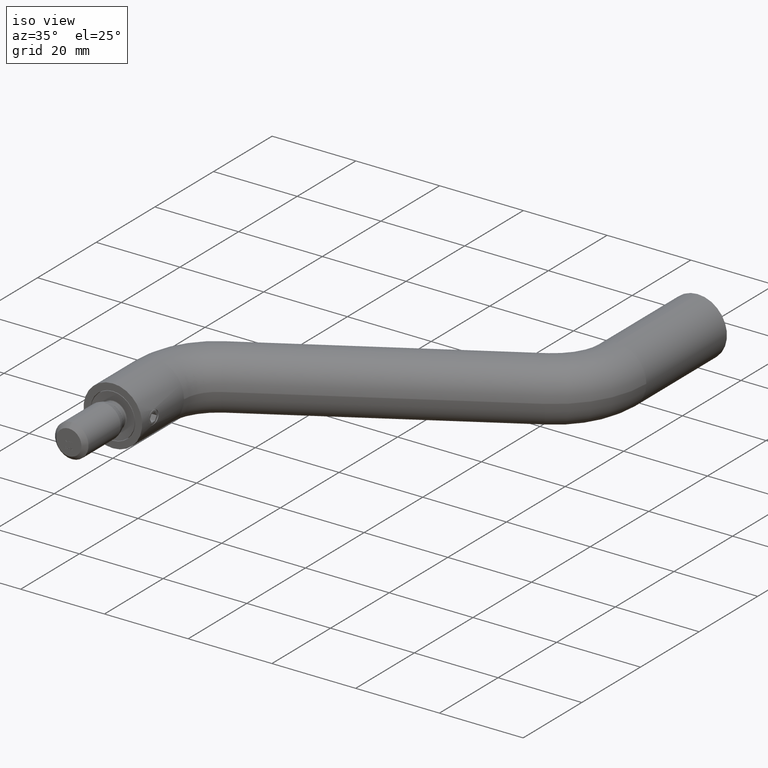
[diagram: clean part render]
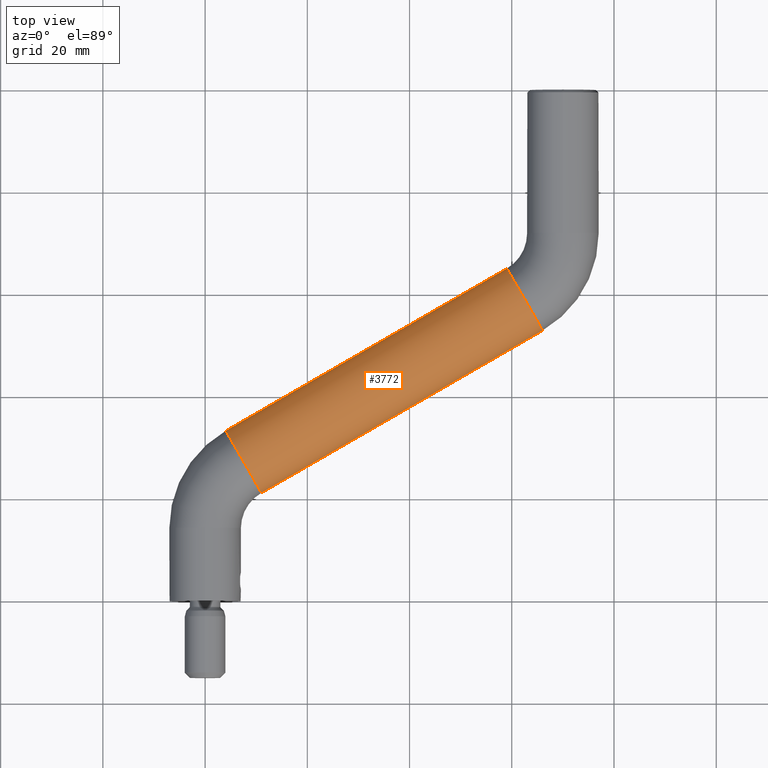
[diagram: tour spotlight — one face highlighted and labeled with its STEP entity id]
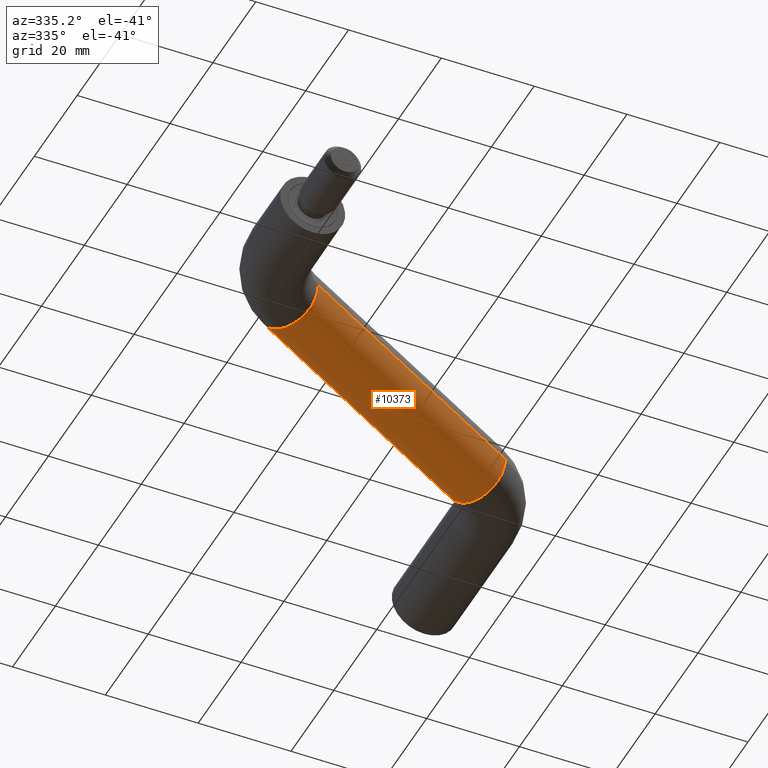
[diagram: tour spotlight — one face highlighted and labeled with its STEP entity id]
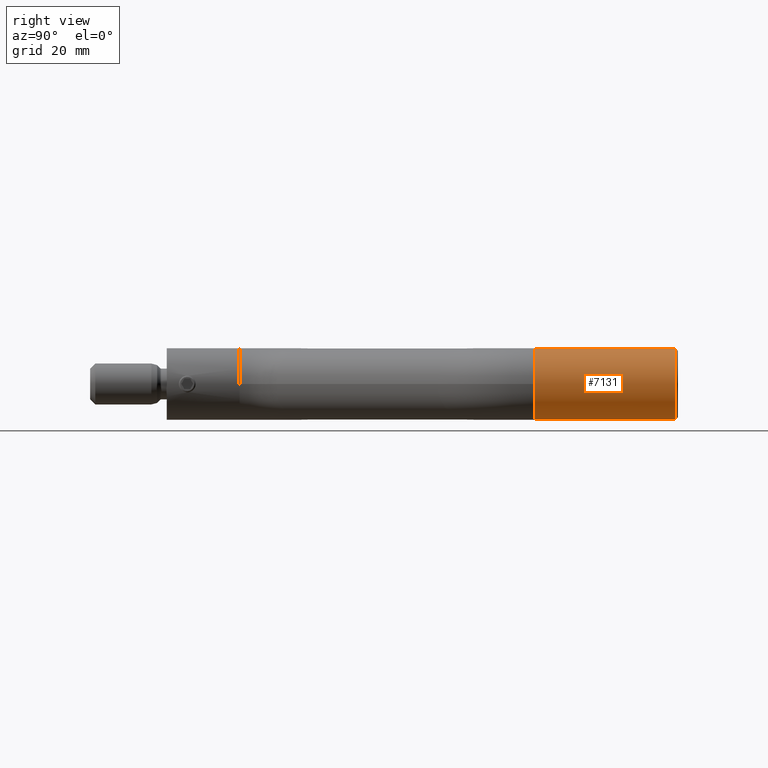
[diagram: tour spotlight — one face highlighted and labeled with its STEP entity id]
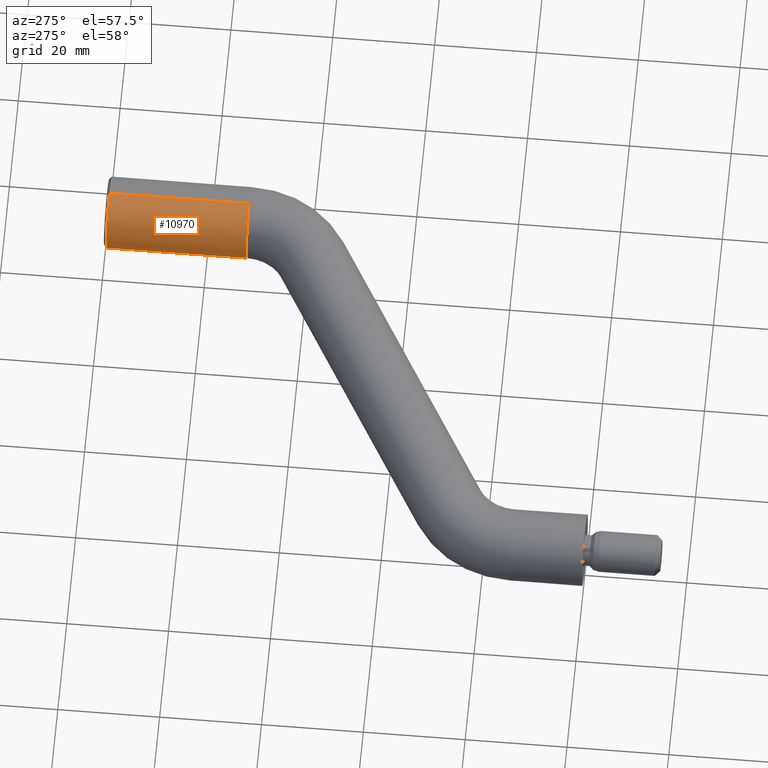
[diagram: tour spotlight — one face highlighted and labeled with its STEP entity id]
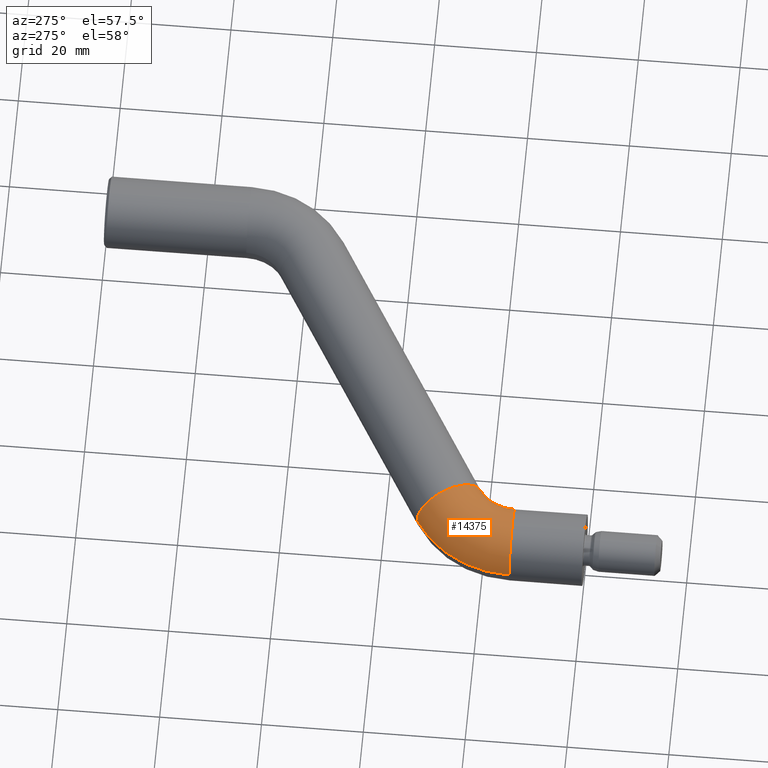
[diagram: tour spotlight — one face highlighted and labeled with its STEP entity id]
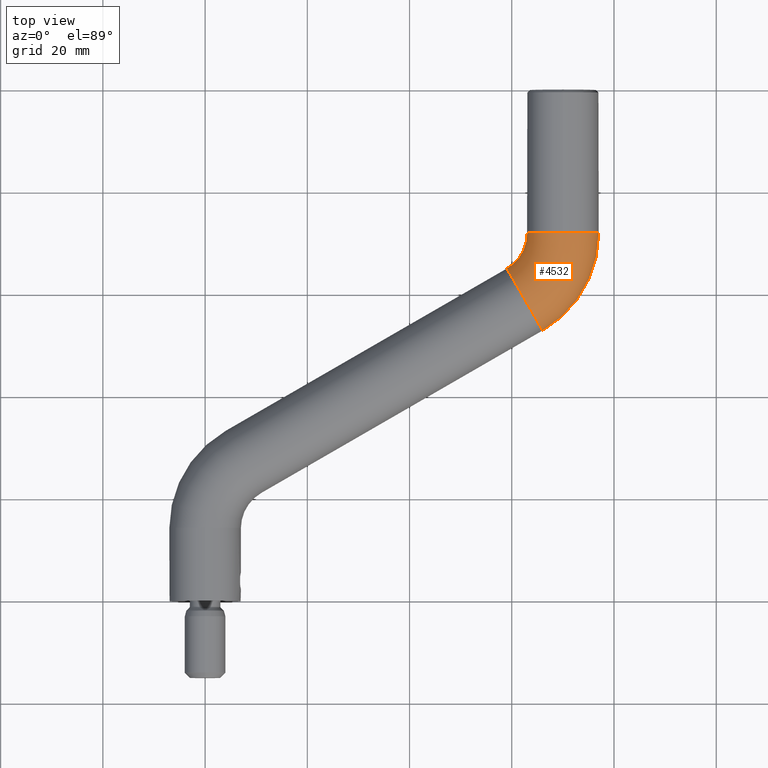
[diagram: tour spotlight — one face highlighted and labeled with its STEP entity id]
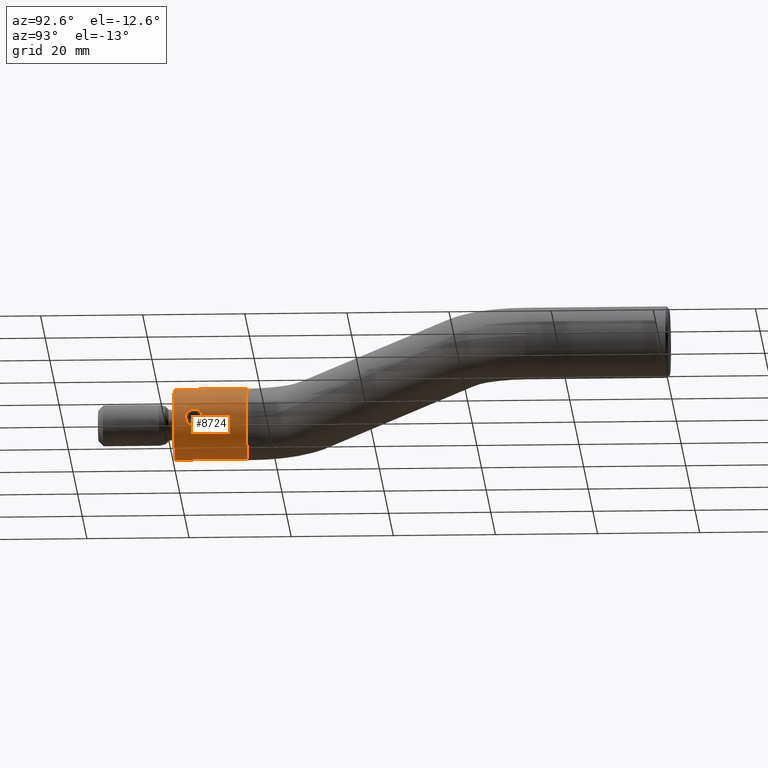
[diagram: tour spotlight — one face highlighted and labeled with its STEP entity id]
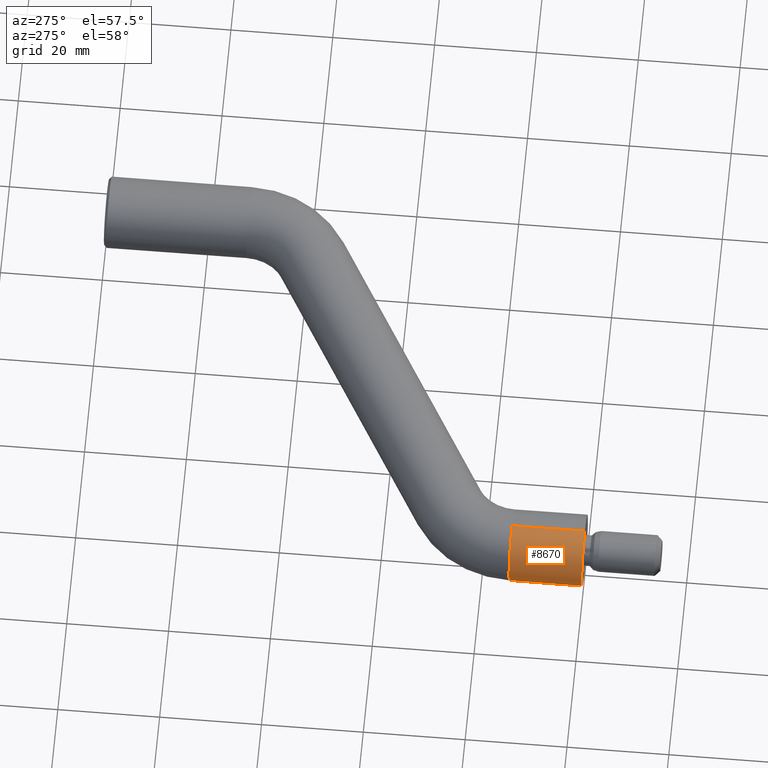
[diagram: tour spotlight — one face highlighted and labeled with its STEP entity id]
A machine part: a face-by-face anatomy tour. The part has 304 B-rep faces; the first image is the clean iso view, then the 8 largest visible faces are spotlighted one at a time (largest first), each with its STEP entity span.

Face 1 — top view, entity #3772. In plain terms, the highlighted cylindrical surface (edge-blend (fillet) strip) has radius 7 mm, axis along (0.866, 0.5, 0).
Definition (entity closure, byte-faithful):
#62 = DIRECTION ( 'NONE',  ( 0.0000000000000000000, 0.0000000000000000000, 1.000000000000000000 ) ) ;
#990 = DIRECTION ( 'NONE',  ( 0.8660254037844398200, 0.4999999999999980000, 0.0000000000000000000 ) ) ;
#1024 = CARTESIAN_POINT ( 'NONE',  ( 11.00000000000001600, 21.19317631131311700, 8.572527594031473200E-016 ) ) ;
#1102 = VERTEX_POINT ( 'NONE', #2758 ) ;
#1156 = EDGE_CURVE ( 'NONE', #1102, #2253, #4850, .T. ) ;
#1329 = CARTESIAN_POINT ( 'NONE',  ( 4.000000000000043500, 33.31753196429527000, 0.0000000000000000000 ) ) ;
#1507 = LINE ( 'NONE', #1329, #3286 ) ;
#1594 = EDGE_CURVE ( 'NONE', #10351, #7417, #11634, .T. ) ;
#2253 = VERTEX_POINT ( 'NONE', #9450 ) ;
#2515 = ORIENTED_EDGE ( 'NONE', *, *, #1594, .F. ) ;
#2758 = CARTESIAN_POINT ( 'NONE',  ( 4.000000000000043500, 33.31753196429527000, 0.0000000000000000000 ) ) ;
#3063 = DIRECTION ( 'NONE',  ( 0.8660254037844398200, 0.4999999999999980600, 0.0000000000000000000 ) ) ;
#3286 = VECTOR ( 'NONE', #11489, 1000.000000000000100 ) ;
#3407 = ORIENTED_EDGE ( 'NONE', *, *, #14409, .F. ) ;
#3772 = ADVANCED_FACE ( 'NONE', ( #11968 ), #6569, .T. ) ;
#4850 = CIRCLE ( 'NONE', #5053, 7.000000000000000000 ) ;
#5053 = AXIS2_PLACEMENT_3D ( 'NONE', #6395, #6240, #11886 ) ;
#5381 = DIRECTION ( 'NONE',  ( -0.4999999999999980600, 0.8660254037844398200, 0.0000000000000000000 ) ) ;
#5427 = CARTESIAN_POINT ( 'NONE',  ( 7.500000000000030200, 27.25535413780419300, 0.0000000000000000000 ) ) ;
#5863 = ORIENTED_EDGE ( 'NONE', *, *, #1156, .T. ) ;
#6174 = AXIS2_PLACEMENT_3D ( 'NONE', #5427, #3063, #5381 ) ;
#6240 = DIRECTION ( 'NONE',  ( 0.8660254037844398200, 0.4999999999999980000, 0.0000000000000000000 ) ) ;
#6395 = CARTESIAN_POINT ( 'NONE',  ( 7.500000000000030200, 27.25535413780419300, 0.0000000000000000000 ) ) ;
#6569 = CYLINDRICAL_SURFACE ( 'NONE', #6174, 7.000000000000000900 ) ;
#6630 = ORIENTED_EDGE ( 'NONE', *, *, #9013, .T. ) ;
#7417 = VERTEX_POINT ( 'NONE', #7949 ) ;
#7653 = DIRECTION ( 'NONE',  ( 0.8660254037844397100, 0.4999999999999980000, 0.0000000000000000000 ) ) ;
#7949 = CARTESIAN_POINT ( 'NONE',  ( 65.99999999999994300, 52.94744111674232600, 8.572527594031473200E-016 ) ) ;
#8286 = EDGE_LOOP ( 'NONE', ( #5863, #6630, #2515, #3407 ) ) ;
#8568 = CARTESIAN_POINT ( 'NONE',  ( 58.99999999999998600, 65.07179676972450000, 0.0000000000000000000 ) ) ;
#9013 = EDGE_CURVE ( 'NONE', #2253, #7417, #13606, .T. ) ;
#9450 = CARTESIAN_POINT ( 'NONE',  ( 11.00000000000001600, 21.19317631131311700, 8.572527594031473200E-016 ) ) ;
#10351 = VERTEX_POINT ( 'NONE', #8568 ) ;
#11185 = CARTESIAN_POINT ( 'NONE',  ( 62.49999999999996400, 59.00961894323340600, 0.0000000000000000000 ) ) ;
#11489 = DIRECTION ( 'NONE',  ( 0.8660254037844397100, 0.4999999999999980000, 0.0000000000000000000 ) ) ;
#11634 = CIRCLE ( 'NONE', #14067, 7.000000000000000000 ) ;
#11886 = DIRECTION ( 'NONE',  ( 0.0000000000000000000, 0.0000000000000000000, 1.000000000000000000 ) ) ;
#11968 = FACE_OUTER_BOUND ( 'NONE', #8286, .T. ) ;
#13606 = LINE ( 'NONE', #1024, #14312 ) ;
#14067 = AXIS2_PLACEMENT_3D ( 'NONE', #11185, #990, #62 ) ;
#14312 = VECTOR ( 'NONE', #7653, 1000.000000000000100 ) ;
#14409 = EDGE_CURVE ( 'NONE', #1102, #10351, #1507, .T. ) ;

Face 2 — auxiliary view, entity #10373. In plain terms, the highlighted cylindrical surface (edge-blend (fillet) strip) has radius 7 mm, axis along (0.866, 0.5, 0).
Definition (entity closure, byte-faithful):
#17 = AXIS2_PLACEMENT_3D ( 'NONE', #10841, #7549, #732 ) ;
#732 = DIRECTION ( 'NONE',  ( -0.4999999999999980600, 0.8660254037844398200, 0.0000000000000000000 ) ) ;
#1024 = CARTESIAN_POINT ( 'NONE',  ( 11.00000000000001600, 21.19317631131311700, 8.572527594031473200E-016 ) ) ;
#1102 = VERTEX_POINT ( 'NONE', #2758 ) ;
#1329 = CARTESIAN_POINT ( 'NONE',  ( 4.000000000000043500, 33.31753196429527000, 0.0000000000000000000 ) ) ;
#1484 = EDGE_CURVE ( 'NONE', #2253, #1102, #2572, .T. ) ;
#1507 = LINE ( 'NONE', #1329, #3286 ) ;
#2253 = VERTEX_POINT ( 'NONE', #9450 ) ;
#2295 = DIRECTION ( 'NONE',  ( 0.0000000000000000000, 0.0000000000000000000, 1.000000000000000000 ) ) ;
#2572 = CIRCLE ( 'NONE', #2781, 7.000000000000000000 ) ;
#2744 = CARTESIAN_POINT ( 'NONE',  ( 7.500000000000030200, 27.25535413780419300, 0.0000000000000000000 ) ) ;
#2758 = CARTESIAN_POINT ( 'NONE',  ( 4.000000000000043500, 33.31753196429527000, 0.0000000000000000000 ) ) ;
#2781 = AXIS2_PLACEMENT_3D ( 'NONE', #2744, #6274, #7250 ) ;
#3286 = VECTOR ( 'NONE', #11489, 1000.000000000000100 ) ;
#3330 = CARTESIAN_POINT ( 'NONE',  ( 62.49999999999996400, 59.00961894323340600, 0.0000000000000000000 ) ) ;
#4025 = CYLINDRICAL_SURFACE ( 'NONE', #17, 7.000000000000000900 ) ;
#4249 = AXIS2_PLACEMENT_3D ( 'NONE', #3330, #12243, #2295 ) ;
#4802 = EDGE_LOOP ( 'NONE', ( #11862, #12562, #7639, #6211 ) ) ;
#6211 = ORIENTED_EDGE ( 'NONE', *, *, #7711, .F. ) ;
#6274 = DIRECTION ( 'NONE',  ( 0.8660254037844398200, 0.4999999999999980000, 0.0000000000000000000 ) ) ;
#7250 = DIRECTION ( 'NONE',  ( 0.0000000000000000000, 0.0000000000000000000, 1.000000000000000000 ) ) ;
#7417 = VERTEX_POINT ( 'NONE', #7949 ) ;
#7549 = DIRECTION ( 'NONE',  ( 0.8660254037844398200, 0.4999999999999980600, 0.0000000000000000000 ) ) ;
#7639 = ORIENTED_EDGE ( 'NONE', *, *, #14409, .T. ) ;
#7653 = DIRECTION ( 'NONE',  ( 0.8660254037844397100, 0.4999999999999980000, 0.0000000000000000000 ) ) ;
#7711 = EDGE_CURVE ( 'NONE', #7417, #10351, #10937, .T. ) ;
#7949 = CARTESIAN_POINT ( 'NONE',  ( 65.99999999999994300, 52.94744111674232600, 8.572527594031473200E-016 ) ) ;
#8568 = CARTESIAN_POINT ( 'NONE',  ( 58.99999999999998600, 65.07179676972450000, 0.0000000000000000000 ) ) ;
#9013 = EDGE_CURVE ( 'NONE', #2253, #7417, #13606, .T. ) ;
#9450 = CARTESIAN_POINT ( 'NONE',  ( 11.00000000000001600, 21.19317631131311700, 8.572527594031473200E-016 ) ) ;
#10351 = VERTEX_POINT ( 'NONE', #8568 ) ;
#10373 = ADVANCED_FACE ( 'NONE', ( #12917 ), #4025, .T. ) ;
#10841 = CARTESIAN_POINT ( 'NONE',  ( 7.500000000000030200, 27.25535413780419300, 0.0000000000000000000 ) ) ;
#10937 = CIRCLE ( 'NONE', #4249, 7.000000000000000000 ) ;
#11489 = DIRECTION ( 'NONE',  ( 0.8660254037844397100, 0.4999999999999980000, 0.0000000000000000000 ) ) ;
#11862 = ORIENTED_EDGE ( 'NONE', *, *, #9013, .F. ) ;
#12243 = DIRECTION ( 'NONE',  ( 0.8660254037844398200, 0.4999999999999980000, 0.0000000000000000000 ) ) ;
#12562 = ORIENTED_EDGE ( 'NONE', *, *, #1484, .T. ) ;
#12917 = FACE_OUTER_BOUND ( 'NONE', #4802, .T. ) ;
#13606 = LINE ( 'NONE', #1024, #14312 ) ;
#14312 = VECTOR ( 'NONE', #7653, 1000.000000000000100 ) ;
#14409 = EDGE_CURVE ( 'NONE', #1102, #10351, #1507, .T. ) ;

Face 3 — right view, entity #7131. In plain terms, the highlighted cylindrical surface (edge-blend (fillet) strip) has radius 7 mm, axis along (0, 1, 0).
Definition (entity closure, byte-faithful):
#201 = AXIS2_PLACEMENT_3D ( 'NONE', #13605, #7055, #9111 ) ;
#467 = LINE ( 'NONE', #11356, #1882 ) ;
#895 = DIRECTION ( 'NONE',  ( 0.0000000000000000000, -1.000000000000000000, 0.0000000000000000000 ) ) ;
#950 = VERTEX_POINT ( 'NONE', #12485 ) ;
#1021 = CIRCLE ( 'NONE', #9194, 7.000000000000000000 ) ;
#1078 = FACE_OUTER_BOUND ( 'NONE', #8421, .T. ) ;
#1882 = VECTOR ( 'NONE', #10252, 1000.000000000000000 ) ;
#2066 = CARTESIAN_POINT ( 'NONE',  ( 70.00000000000000000, 72.00000000000001400, 0.0000000000000000000 ) ) ;
#2277 = CIRCLE ( 'NONE', #5269, 7.000000000000000000 ) ;
#2279 = ORIENTED_EDGE ( 'NONE', *, *, #11668, .T. ) ;
#2306 = CYLINDRICAL_SURFACE ( 'NONE', #3956, 7.000000000000000000 ) ;
#3014 = ORIENTED_EDGE ( 'NONE', *, *, #13944, .T. ) ;
#3956 = AXIS2_PLACEMENT_3D ( 'NONE', #11928, #7306, #6281 ) ;
#4419 = ORIENTED_EDGE ( 'NONE', *, *, #10490, .T. ) ;
#4899 = VERTEX_POINT ( 'NONE', #9580 ) ;
#5269 = AXIS2_PLACEMENT_3D ( 'NONE', #2066, #8722, #12205 ) ;
#5443 = VERTEX_POINT ( 'NONE', #6407 ) ;
#5542 = CARTESIAN_POINT ( 'NONE',  ( 70.00000000000000000, 99.50000000000004300, 7.000000000000000000 ) ) ;
#5597 = VERTEX_POINT ( 'NONE', #5542 ) ;
#5794 = CARTESIAN_POINT ( 'NONE',  ( 70.00000000000000000, 99.50000000000004300, 0.0000000000000000000 ) ) ;
#6281 = DIRECTION ( 'NONE',  ( 0.0000000000000000000, 0.0000000000000000000, 1.000000000000000000 ) ) ;
#6317 = ORIENTED_EDGE ( 'NONE', *, *, #8333, .T. ) ;
#6407 = CARTESIAN_POINT ( 'NONE',  ( 70.00000000000000000, 72.00000000000001400, 7.000000000000000000 ) ) ;
#6688 = ORIENTED_EDGE ( 'NONE', *, *, #13701, .F. ) ;
#6729 = DIRECTION ( 'NONE',  ( 0.0000000000000000000, 0.0000000000000000000, 1.000000000000000000 ) ) ;
#6789 = VECTOR ( 'NONE', #14143, 1000.000000000000000 ) ;
#7055 = DIRECTION ( 'NONE',  ( -7.216449660063517500E-016, 1.000000000000000000, 0.0000000000000000000 ) ) ;
#7081 = CIRCLE ( 'NONE', #201, 7.000000000000000000 ) ;
#7131 = ADVANCED_FACE ( 'NONE', ( #1078 ), #2306, .T. ) ;
#7133 = LINE ( 'NONE', #9691, #6789 ) ;
#7306 = DIRECTION ( 'NONE',  ( 0.0000000000000000000, 1.000000000000000000, 0.0000000000000000000 ) ) ;
#8333 = EDGE_CURVE ( 'NONE', #5443, #4899, #7081, .T. ) ;
#8421 = EDGE_LOOP ( 'NONE', ( #6317, #4419, #3014, #2279, #6688 ) ) ;
#8722 = DIRECTION ( 'NONE',  ( -7.216449660063517500E-016, 1.000000000000000000, 0.0000000000000000000 ) ) ;
#9111 = DIRECTION ( 'NONE',  ( 0.0000000000000000000, 0.0000000000000000000, 1.000000000000000000 ) ) ;
#9194 = AXIS2_PLACEMENT_3D ( 'NONE', #5794, #895, #6729 ) ;
#9580 = CARTESIAN_POINT ( 'NONE',  ( 77.00000000000001400, 72.00000000000001400, 0.0000000000000000000 ) ) ;
#9691 = CARTESIAN_POINT ( 'NONE',  ( 70.00000000000000000, 72.00000000000001400, 7.000000000000000000 ) ) ;
#10252 = DIRECTION ( 'NONE',  ( 0.0000000000000000000, 1.000000000000000000, 0.0000000000000000000 ) ) ;
#10490 = EDGE_CURVE ( 'NONE', #4899, #13945, #2277, .T. ) ;
#11356 = CARTESIAN_POINT ( 'NONE',  ( 70.00000000000000000, 72.00000000000001400, -7.000000000000000000 ) ) ;
#11668 = EDGE_CURVE ( 'NONE', #950, #5597, #1021, .T. ) ;
#11928 = CARTESIAN_POINT ( 'NONE',  ( 70.00000000000000000, 72.00000000000001400, 0.0000000000000000000 ) ) ;
#12205 = DIRECTION ( 'NONE',  ( 0.0000000000000000000, 0.0000000000000000000, 1.000000000000000000 ) ) ;
#12485 = CARTESIAN_POINT ( 'NONE',  ( 70.00000000000000000, 99.50000000000004300, -7.000000000000000000 ) ) ;
#12488 = CARTESIAN_POINT ( 'NONE',  ( 70.00000000000000000, 72.00000000000001400, -7.000000000000000000 ) ) ;
#13605 = CARTESIAN_POINT ( 'NONE',  ( 70.00000000000000000, 72.00000000000001400, 0.0000000000000000000 ) ) ;
#13701 = EDGE_CURVE ( 'NONE', #5443, #5597, #7133, .T. ) ;
#13944 = EDGE_CURVE ( 'NONE', #13945, #950, #467, .T. ) ;
#13945 = VERTEX_POINT ( 'NONE', #12488 ) ;
#14143 = DIRECTION ( 'NONE',  ( 0.0000000000000000000, 1.000000000000000000, 0.0000000000000000000 ) ) ;

Face 4 — auxiliary view, entity #10970. In plain terms, the highlighted cylindrical surface (edge-blend (fillet) strip) has radius 7 mm, axis along (0, 1, 0).
Definition (entity closure, byte-faithful):
#19 = EDGE_LOOP ( 'NONE', ( #11698, #5496, #3723, #2835, #10817 ) ) ;
#467 = LINE ( 'NONE', #11356, #1882 ) ;
#666 = AXIS2_PLACEMENT_3D ( 'NONE', #2430, #1386, #13483 ) ;
#950 = VERTEX_POINT ( 'NONE', #12485 ) ;
#958 = DIRECTION ( 'NONE',  ( -7.216449660063517500E-016, 1.000000000000000000, 0.0000000000000000000 ) ) ;
#1027 = DIRECTION ( 'NONE',  ( 0.0000000000000000000, 0.0000000000000000000, 1.000000000000000000 ) ) ;
#1386 = DIRECTION ( 'NONE',  ( 0.0000000000000000000, -1.000000000000000000, 0.0000000000000000000 ) ) ;
#1495 = AXIS2_PLACEMENT_3D ( 'NONE', #6704, #2213, #1027 ) ;
#1844 = CIRCLE ( 'NONE', #666, 7.000000000000000000 ) ;
#1882 = VECTOR ( 'NONE', #10252, 1000.000000000000000 ) ;
#1970 = VERTEX_POINT ( 'NONE', #7696 ) ;
#2213 = DIRECTION ( 'NONE',  ( -7.216449660063517500E-016, 1.000000000000000000, 0.0000000000000000000 ) ) ;
#2261 = CYLINDRICAL_SURFACE ( 'NONE', #13910, 7.000000000000000000 ) ;
#2430 = CARTESIAN_POINT ( 'NONE',  ( 70.00000000000000000, 99.50000000000004300, 0.0000000000000000000 ) ) ;
#2835 = ORIENTED_EDGE ( 'NONE', *, *, #13701, .T. ) ;
#3723 = ORIENTED_EDGE ( 'NONE', *, *, #3775, .T. ) ;
#3775 = EDGE_CURVE ( 'NONE', #1970, #5443, #14209, .T. ) ;
#5443 = VERTEX_POINT ( 'NONE', #6407 ) ;
#5496 = ORIENTED_EDGE ( 'NONE', *, *, #11296, .T. ) ;
#5542 = CARTESIAN_POINT ( 'NONE',  ( 70.00000000000000000, 99.50000000000004300, 7.000000000000000000 ) ) ;
#5597 = VERTEX_POINT ( 'NONE', #5542 ) ;
#6373 = AXIS2_PLACEMENT_3D ( 'NONE', #14204, #958, #7627 ) ;
#6407 = CARTESIAN_POINT ( 'NONE',  ( 70.00000000000000000, 72.00000000000001400, 7.000000000000000000 ) ) ;
#6704 = CARTESIAN_POINT ( 'NONE',  ( 70.00000000000000000, 72.00000000000001400, 0.0000000000000000000 ) ) ;
#6789 = VECTOR ( 'NONE', #14143, 1000.000000000000000 ) ;
#7133 = LINE ( 'NONE', #9691, #6789 ) ;
#7627 = DIRECTION ( 'NONE',  ( 0.0000000000000000000, 0.0000000000000000000, 1.000000000000000000 ) ) ;
#7696 = CARTESIAN_POINT ( 'NONE',  ( 63.00000000000000000, 72.00000000000001400, -8.572527594031465300E-016 ) ) ;
#7866 = EDGE_CURVE ( 'NONE', #5597, #950, #1844, .T. ) ;
#7994 = DIRECTION ( 'NONE',  ( 0.0000000000000000000, 1.000000000000000000, 0.0000000000000000000 ) ) ;
#9691 = CARTESIAN_POINT ( 'NONE',  ( 70.00000000000000000, 72.00000000000001400, 7.000000000000000000 ) ) ;
#10164 = DIRECTION ( 'NONE',  ( 0.0000000000000000000, 0.0000000000000000000, 1.000000000000000000 ) ) ;
#10252 = DIRECTION ( 'NONE',  ( 0.0000000000000000000, 1.000000000000000000, 0.0000000000000000000 ) ) ;
#10817 = ORIENTED_EDGE ( 'NONE', *, *, #7866, .T. ) ;
#10970 = ADVANCED_FACE ( 'NONE', ( #11156 ), #2261, .T. ) ;
#11156 = FACE_OUTER_BOUND ( 'NONE', #19, .T. ) ;
#11296 = EDGE_CURVE ( 'NONE', #13945, #1970, #14271, .T. ) ;
#11356 = CARTESIAN_POINT ( 'NONE',  ( 70.00000000000000000, 72.00000000000001400, -7.000000000000000000 ) ) ;
#11698 = ORIENTED_EDGE ( 'NONE', *, *, #13944, .F. ) ;
#12485 = CARTESIAN_POINT ( 'NONE',  ( 70.00000000000000000, 99.50000000000004300, -7.000000000000000000 ) ) ;
#12488 = CARTESIAN_POINT ( 'NONE',  ( 70.00000000000000000, 72.00000000000001400, -7.000000000000000000 ) ) ;
#13454 = CARTESIAN_POINT ( 'NONE',  ( 70.00000000000000000, 72.00000000000001400, 0.0000000000000000000 ) ) ;
#13483 = DIRECTION ( 'NONE',  ( 0.0000000000000000000, 0.0000000000000000000, 1.000000000000000000 ) ) ;
#13701 = EDGE_CURVE ( 'NONE', #5443, #5597, #7133, .T. ) ;
#13910 = AXIS2_PLACEMENT_3D ( 'NONE', #13454, #7994, #10164 ) ;
#13944 = EDGE_CURVE ( 'NONE', #13945, #950, #467, .T. ) ;
#13945 = VERTEX_POINT ( 'NONE', #12488 ) ;
#14143 = DIRECTION ( 'NONE',  ( 0.0000000000000000000, 1.000000000000000000, 0.0000000000000000000 ) ) ;
#14204 = CARTESIAN_POINT ( 'NONE',  ( 70.00000000000000000, 72.00000000000001400, 0.0000000000000000000 ) ) ;
#14209 = CIRCLE ( 'NONE', #6373, 7.000000000000000000 ) ;
#14271 = CIRCLE ( 'NONE', #1495, 7.000000000000000000 ) ;

Face 5 — auxiliary view, entity #14375. In plain terms, the highlighted toroidal blend (fillet) surface has major radius 15 mm and minor (blend) radius 7 mm.
Definition (entity closure, byte-faithful):
#88 = CARTESIAN_POINT ( 'NONE',  ( 8.572527594031473200E-016, 14.26497308103759900, 7.000000000000000000 ) ) ;
#887 = EDGE_CURVE ( 'NONE', #11349, #2253, #3294, .T. ) ;
#995 = FACE_OUTER_BOUND ( 'NONE', #11576, .T. ) ;
#1102 = VERTEX_POINT ( 'NONE', #2758 ) ;
#1156 = EDGE_CURVE ( 'NONE', #1102, #2253, #4850, .T. ) ;
#1236 = DIRECTION ( 'NONE',  ( -1.000000000000000000, 0.0000000000000000000, 0.0000000000000000000 ) ) ;
#1273 = CARTESIAN_POINT ( 'NONE',  ( 0.0000000000000000000, 14.26497308103759900, 0.0000000000000000000 ) ) ;
#1876 = DIRECTION ( 'NONE',  ( -0.0000000000000000000, -0.0000000000000000000, -1.000000000000000000 ) ) ;
#2253 = VERTEX_POINT ( 'NONE', #9450 ) ;
#2316 = ORIENTED_EDGE ( 'NONE', *, *, #8311, .T. ) ;
#2534 = DIRECTION ( 'NONE',  ( -1.000000000000000000, 0.0000000000000000000, 0.0000000000000000000 ) ) ;
#2758 = CARTESIAN_POINT ( 'NONE',  ( 4.000000000000043500, 33.31753196429527000, 0.0000000000000000000 ) ) ;
#3294 = CIRCLE ( 'NONE', #7590, 8.000000000000000000 ) ;
#4836 = CARTESIAN_POINT ( 'NONE',  ( 15.00000000000000000, 14.26497308103759900, 8.572527594031473200E-016 ) ) ;
#4850 = CIRCLE ( 'NONE', #5053, 7.000000000000000000 ) ;
#4986 = CIRCLE ( 'NONE', #8453, 7.000000000000000000 ) ;
#5053 = AXIS2_PLACEMENT_3D ( 'NONE', #6395, #6240, #11886 ) ;
#5527 = EDGE_CURVE ( 'NONE', #13416, #14379, #12114, .T. ) ;
#5823 = ORIENTED_EDGE ( 'NONE', *, *, #5913, .F. ) ;
#5913 = EDGE_CURVE ( 'NONE', #13416, #1102, #6172, .T. ) ;
#6085 = AXIS2_PLACEMENT_3D ( 'NONE', #14192, #1876, #9585 ) ;
#6172 = CIRCLE ( 'NONE', #6085, 22.00000000000000000 ) ;
#6240 = DIRECTION ( 'NONE',  ( 0.8660254037844398200, 0.4999999999999980000, 0.0000000000000000000 ) ) ;
#6251 = DIRECTION ( 'NONE',  ( 0.0000000000000000000, 0.0000000000000000000, 1.000000000000000000 ) ) ;
#6299 = ORIENTED_EDGE ( 'NONE', *, *, #1156, .F. ) ;
#6395 = CARTESIAN_POINT ( 'NONE',  ( 7.500000000000030200, 27.25535413780419300, 0.0000000000000000000 ) ) ;
#7291 = TOROIDAL_SURFACE ( 'NONE', #10508, 15.00000000000000000, 7.000000000000000000 ) ;
#7514 = ORIENTED_EDGE ( 'NONE', *, *, #5527, .T. ) ;
#7590 = AXIS2_PLACEMENT_3D ( 'NONE', #4836, #12629, #2534 ) ;
#8093 = DIRECTION ( 'NONE',  ( 0.0000000000000000000, 1.000000000000000000, 0.0000000000000000000 ) ) ;
#8194 = DIRECTION ( 'NONE',  ( 0.0000000000000000000, 0.0000000000000000000, 1.000000000000000000 ) ) ;
#8311 = EDGE_CURVE ( 'NONE', #14379, #11349, #4986, .T. ) ;
#8453 = AXIS2_PLACEMENT_3D ( 'NONE', #1273, #8093, #8194 ) ;
#8769 = CARTESIAN_POINT ( 'NONE',  ( 7.000000000000000900, 14.26497308103759900, 8.572527594031474200E-016 ) ) ;
#8964 = ORIENTED_EDGE ( 'NONE', *, *, #887, .T. ) ;
#8988 = CARTESIAN_POINT ( 'NONE',  ( 15.00000000000000000, 14.26497308103759900, 0.0000000000000000000 ) ) ;
#9450 = CARTESIAN_POINT ( 'NONE',  ( 11.00000000000001600, 21.19317631131311700, 8.572527594031473200E-016 ) ) ;
#9585 = DIRECTION ( 'NONE',  ( -1.000000000000000000, 0.0000000000000000000, 0.0000000000000000000 ) ) ;
#10508 = AXIS2_PLACEMENT_3D ( 'NONE', #8988, #11208, #1236 ) ;
#11208 = DIRECTION ( 'NONE',  ( -0.0000000000000000000, -0.0000000000000000000, -1.000000000000000000 ) ) ;
#11349 = VERTEX_POINT ( 'NONE', #8769 ) ;
#11506 = AXIS2_PLACEMENT_3D ( 'NONE', #11896, #14118, #6251 ) ;
#11576 = EDGE_LOOP ( 'NONE', ( #5823, #7514, #2316, #8964, #6299 ) ) ;
#11886 = DIRECTION ( 'NONE',  ( 0.0000000000000000000, 0.0000000000000000000, 1.000000000000000000 ) ) ;
#11896 = CARTESIAN_POINT ( 'NONE',  ( 0.0000000000000000000, 14.26497308103759900, 0.0000000000000000000 ) ) ;
#12114 = CIRCLE ( 'NONE', #11506, 7.000000000000000000 ) ;
#12331 = CARTESIAN_POINT ( 'NONE',  ( -6.999999999999999100, 14.26497308103759900, 0.0000000000000000000 ) ) ;
#12629 = DIRECTION ( 'NONE',  ( -0.0000000000000000000, -0.0000000000000000000, -1.000000000000000000 ) ) ;
#13416 = VERTEX_POINT ( 'NONE', #12331 ) ;
#14118 = DIRECTION ( 'NONE',  ( 0.0000000000000000000, 1.000000000000000000, 0.0000000000000000000 ) ) ;
#14192 = CARTESIAN_POINT ( 'NONE',  ( 15.00000000000000000, 14.26497308103759900, 0.0000000000000000000 ) ) ;
#14375 = ADVANCED_FACE ( 'NONE', ( #995 ), #7291, .T. ) ;
#14379 = VERTEX_POINT ( 'NONE', #88 ) ;

Face 6 — top view, entity #4532. In plain terms, the highlighted toroidal blend (fillet) surface has major radius 15 mm and minor (blend) radius 7 mm.
Definition (entity closure, byte-faithful):
#62 = DIRECTION ( 'NONE',  ( 0.0000000000000000000, 0.0000000000000000000, 1.000000000000000000 ) ) ;
#164 = EDGE_CURVE ( 'NONE', #10351, #1970, #7933, .T. ) ;
#201 = AXIS2_PLACEMENT_3D ( 'NONE', #13605, #7055, #9111 ) ;
#958 = DIRECTION ( 'NONE',  ( -7.216449660063517500E-016, 1.000000000000000000, 0.0000000000000000000 ) ) ;
#990 = DIRECTION ( 'NONE',  ( 0.8660254037844398200, 0.4999999999999980000, 0.0000000000000000000 ) ) ;
#1034 = ORIENTED_EDGE ( 'NONE', *, *, #3775, .F. ) ;
#1060 = ORIENTED_EDGE ( 'NONE', *, *, #8333, .F. ) ;
#1594 = EDGE_CURVE ( 'NONE', #10351, #7417, #11634, .T. ) ;
#1970 = VERTEX_POINT ( 'NONE', #7696 ) ;
#2059 = EDGE_CURVE ( 'NONE', #7417, #4899, #3441, .T. ) ;
#2529 = TOROIDAL_SURFACE ( 'NONE', #9368, 14.99999999999999800, 7.000000000000000000 ) ;
#3441 = CIRCLE ( 'NONE', #7289, 22.00000000000000700 ) ;
#3450 = AXIS2_PLACEMENT_3D ( 'NONE', #14408, #5582, #11168 ) ;
#3775 = EDGE_CURVE ( 'NONE', #1970, #5443, #14209, .T. ) ;
#4532 = ADVANCED_FACE ( 'NONE', ( #11248 ), #2529, .T. ) ;
#4899 = VERTEX_POINT ( 'NONE', #9580 ) ;
#5284 = DIRECTION ( 'NONE',  ( 1.000000000000000000, 0.0000000000000000000, 0.0000000000000000000 ) ) ;
#5443 = VERTEX_POINT ( 'NONE', #6407 ) ;
#5582 = DIRECTION ( 'NONE',  ( 0.0000000000000000000, 0.0000000000000000000, 1.000000000000000000 ) ) ;
#6373 = AXIS2_PLACEMENT_3D ( 'NONE', #14204, #958, #7627 ) ;
#6407 = CARTESIAN_POINT ( 'NONE',  ( 70.00000000000000000, 72.00000000000001400, 7.000000000000000000 ) ) ;
#7055 = DIRECTION ( 'NONE',  ( -7.216449660063517500E-016, 1.000000000000000000, 0.0000000000000000000 ) ) ;
#7081 = CIRCLE ( 'NONE', #201, 7.000000000000000000 ) ;
#7289 = AXIS2_PLACEMENT_3D ( 'NONE', #9924, #14224, #8608 ) ;
#7417 = VERTEX_POINT ( 'NONE', #7949 ) ;
#7627 = DIRECTION ( 'NONE',  ( 0.0000000000000000000, 0.0000000000000000000, 1.000000000000000000 ) ) ;
#7696 = CARTESIAN_POINT ( 'NONE',  ( 63.00000000000000000, 72.00000000000001400, -8.572527594031465300E-016 ) ) ;
#7933 = CIRCLE ( 'NONE', #3450, 7.999999999999992900 ) ;
#7949 = CARTESIAN_POINT ( 'NONE',  ( 65.99999999999994300, 52.94744111674232600, 8.572527594031473200E-016 ) ) ;
#8333 = EDGE_CURVE ( 'NONE', #5443, #4899, #7081, .T. ) ;
#8568 = CARTESIAN_POINT ( 'NONE',  ( 58.99999999999998600, 65.07179676972450000, 0.0000000000000000000 ) ) ;
#8608 = DIRECTION ( 'NONE',  ( 1.000000000000000000, 0.0000000000000000000, 0.0000000000000000000 ) ) ;
#9111 = DIRECTION ( 'NONE',  ( 0.0000000000000000000, 0.0000000000000000000, 1.000000000000000000 ) ) ;
#9368 = AXIS2_PLACEMENT_3D ( 'NONE', #10441, #11943, #5284 ) ;
#9580 = CARTESIAN_POINT ( 'NONE',  ( 77.00000000000001400, 72.00000000000001400, 0.0000000000000000000 ) ) ;
#9924 = CARTESIAN_POINT ( 'NONE',  ( 55.00000000000000700, 72.00000000000001400, 0.0000000000000000000 ) ) ;
#10114 = ORIENTED_EDGE ( 'NONE', *, *, #1594, .T. ) ;
#10351 = VERTEX_POINT ( 'NONE', #8568 ) ;
#10441 = CARTESIAN_POINT ( 'NONE',  ( 55.00000000000000700, 72.00000000000001400, 0.0000000000000000000 ) ) ;
#10848 = ORIENTED_EDGE ( 'NONE', *, *, #2059, .T. ) ;
#10975 = ORIENTED_EDGE ( 'NONE', *, *, #164, .F. ) ;
#11168 = DIRECTION ( 'NONE',  ( 1.000000000000000000, 0.0000000000000000000, 0.0000000000000000000 ) ) ;
#11185 = CARTESIAN_POINT ( 'NONE',  ( 62.49999999999996400, 59.00961894323340600, 0.0000000000000000000 ) ) ;
#11248 = FACE_OUTER_BOUND ( 'NONE', #11367, .T. ) ;
#11367 = EDGE_LOOP ( 'NONE', ( #10114, #10848, #1060, #1034, #10975 ) ) ;
#11634 = CIRCLE ( 'NONE', #14067, 7.000000000000000000 ) ;
#11943 = DIRECTION ( 'NONE',  ( 0.0000000000000000000, 0.0000000000000000000, 1.000000000000000000 ) ) ;
#13605 = CARTESIAN_POINT ( 'NONE',  ( 70.00000000000000000, 72.00000000000001400, 0.0000000000000000000 ) ) ;
#14067 = AXIS2_PLACEMENT_3D ( 'NONE', #11185, #990, #62 ) ;
#14204 = CARTESIAN_POINT ( 'NONE',  ( 70.00000000000000000, 72.00000000000001400, 0.0000000000000000000 ) ) ;
#14209 = CIRCLE ( 'NONE', #6373, 7.000000000000000000 ) ;
#14224 = DIRECTION ( 'NONE',  ( 0.0000000000000000000, 0.0000000000000000000, 1.000000000000000000 ) ) ;
#14408 = CARTESIAN_POINT ( 'NONE',  ( 55.00000000000000700, 72.00000000000001400, -8.572527594031473200E-016 ) ) ;

Face 7 — auxiliary view, entity #8724. In plain terms, the highlighted cylindrical surface (edge-blend (fillet) strip) has radius 7 mm, axis along (-0, -1, -0).
Definition (entity closure, byte-faithful):
#88 = CARTESIAN_POINT ( 'NONE',  ( 8.572527594031473200E-016, 14.26497308103759900, 7.000000000000000000 ) ) ;
#183 = VERTEX_POINT ( 'NONE', #10288 ) ;
#716 = CARTESIAN_POINT ( 'NONE',  ( 6.850682986879226300, 4.832716223303757300, -1.440594414308841600 ) ) ;
#768 = CARTESIAN_POINT ( 'NONE',  ( 6.951381027760716900, 5.430950482334939300, 0.8284870251625853200 ) ) ;
#819 = CARTESIAN_POINT ( 'NONE',  ( 6.989492729003489800, 5.606901861127097300, 0.4330652215076812300 ) ) ;
#914 = CARTESIAN_POINT ( 'NONE',  ( 6.987744406976828400, 5.597338632473671400, -0.4273928636816775600 ) ) ;
#1228 = FACE_OUTER_BOUND ( 'NONE', #10499, .T. ) ;
#1273 = CARTESIAN_POINT ( 'NONE',  ( 0.0000000000000000000, 14.26497308103759900, 0.0000000000000000000 ) ) ;
#1290 = CARTESIAN_POINT ( 'NONE',  ( 6.953318440557151100, 2.558610310340817800, -0.8312988772853360200 ) ) ;
#1584 = FACE_BOUND ( 'NONE', #6012, .T. ) ;
#2180 = ORIENTED_EDGE ( 'NONE', *, *, #12860, .F. ) ;
#2293 = CARTESIAN_POINT ( 'NONE',  ( 6.822911991866243800, 3.466609122051444600, -1.565144815384444300 ) ) ;
#2301 = CARTESIAN_POINT ( 'NONE',  ( 8.572527594031473200E-016, 14.26497308103759900, 7.000000000000000000 ) ) ;
#2334 = CARTESIAN_POINT ( 'NONE',  ( 6.852344388496460300, 3.172354386242122200, -1.431469261584164000 ) ) ;
#2497 = CARTESIAN_POINT ( 'NONE',  ( 0.0000000000000000000, 14.26497308103759900, 0.0000000000000000000 ) ) ;
#2950 = DIRECTION ( 'NONE',  ( 0.0000000000000000000, 0.0000000000000000000, 1.000000000000000000 ) ) ;
#2971 = ORIENTED_EDGE ( 'NONE', *, *, #11513, .T. ) ;
#3123 = CARTESIAN_POINT ( 'NONE',  ( 6.841267040103103300, 4.731586293299303100, 1.482851335314276700 ) ) ;
#3400 = AXIS2_PLACEMENT_3D ( 'NONE', #9548, #4141, #2950 ) ;
#3608 = CARTESIAN_POINT ( 'NONE',  ( 6.805405047654839600, 3.782542281366417600, 1.639188448635530800 ) ) ;
#3759 = ORIENTED_EDGE ( 'NONE', *, *, #5728, .T. ) ;
#3813 = LINE ( 'NONE', #2301, #4175 ) ;
#4141 = DIRECTION ( 'NONE',  ( 0.0000000000000000000, 1.000000000000000000, 0.0000000000000000000 ) ) ;
#4156 = CARTESIAN_POINT ( 'NONE',  ( 6.962150194191760700, 5.481786614904318200, 0.7338959035406237300 ) ) ;
#4170 = CARTESIAN_POINT ( 'NONE',  ( 6.802756794123986600, 3.892093360274972500, 1.649999999999994100 ) ) ;
#4175 = VECTOR ( 'NONE', #13399, 1000.000000000000000 ) ;
#4209 = CARTESIAN_POINT ( 'NONE',  ( 6.852391282326572700, 4.828039948446935600, 1.431248323626332000 ) ) ;
#4254 = ORIENTED_EDGE ( 'NONE', *, *, #12222, .T. ) ;
#4422 = CARTESIAN_POINT ( 'NONE',  ( 6.852464869255960900, 3.171393368445135400, 1.430885112156654800 ) ) ;
#4454 = CARTESIAN_POINT ( 'NONE',  ( 6.953219085542674100, 2.559052478600408500, 0.8325765233653126300 ) ) ;
#4533 = CARTESIAN_POINT ( 'NONE',  ( 0.0000000000000000000, 14.26497308103759900, -7.000000000000000000 ) ) ;
#4544 = CARTESIAN_POINT ( 'NONE',  ( 6.927758365672919400, 2.681417222141242000, -1.014801964244751000 ) ) ;
#4566 = CARTESIAN_POINT ( 'NONE',  ( 0.0000000000000000000, 0.0000000000000000000, 0.0000000000000000000 ) ) ;
#4986 = CIRCLE ( 'NONE', #8453, 7.000000000000000000 ) ;
#5343 = CARTESIAN_POINT ( 'NONE',  ( 6.980417650261999000, 5.565360904777959300, -0.5326934506368664600 ) ) ;
#5672 = CARTESIAN_POINT ( 'NONE',  ( 6.989344852189535800, 2.393790684720074500, -0.4344579339126454200 ) ) ;
#5728 = EDGE_CURVE ( 'NONE', #13447, #11344, #7273, .T. ) ;
#5876 = DIRECTION ( 'NONE',  ( -0.0000000000000000000, -1.000000000000000000, -0.0000000000000000000 ) ) ;
#6012 = EDGE_LOOP ( 'NONE', ( #3759, #2971 ) ) ;
#6451 = CARTESIAN_POINT ( 'NONE',  ( 6.802756794123983900, 4.109406596322818600, -1.649999999999993500 ) ) ;
#6497 = CARTESIAN_POINT ( 'NONE',  ( 6.802756794123984800, 4.000000000000000000, 1.649999999999993500 ) ) ;
#6571 = ORIENTED_EDGE ( 'NONE', *, *, #6938, .F. ) ;
#6781 = CARTESIAN_POINT ( 'NONE',  ( 6.997434424159480100, 2.360789087529681300, 0.2171744528646535100 ) ) ;
#6833 = CYLINDRICAL_SURFACE ( 'NONE', #8531, 7.000000000000000000 ) ;
#6938 = EDGE_CURVE ( 'NONE', #13943, #7523, #11207, .T. ) ;
#7273 = B_SPLINE_CURVE_WITH_KNOTS ( 'NONE', 3,
 ( #11262, #13387, #13345, #8992, #2293, #9039, #2334, #10095, #11212, #4544, #1290, #5672, #9124, #12239, #6781, #11125, #10141, #4454, #14096, #8524, #9625, #4422, #13540, #10693, #7784, #3608, #4170, #7423 ),
 .UNSPECIFIED., .F., .F.,
 ( 4, 2, 2, 2, 2, 2, 2, 2, 2, 2, 2, 2, 2, 4 ),
 ( 0.0000000000000000000, 0.0003235554181088705000, 0.0006471108362177410000, 0.0009706662543266115500, 0.001294221672435482000, 0.001941332508653223100, 0.002588443344870964000, 0.002911998762979835000, 0.003235554181088705500, 0.003882665017306446200, 0.004206220435415317600, 0.004529775853524187700, 0.004853331271633059600, 0.005176886689741930600 ),
 .UNSPECIFIED. ) ;
#7423 = CARTESIAN_POINT ( 'NONE',  ( 6.802756794123984800, 4.000000000000000000, 1.649999999999993500 ) ) ;
#7429 = CARTESIAN_POINT ( 'NONE',  ( 6.889123412701857200, 5.090021476738860100, 1.243351347814380900 ) ) ;
#7480 = CARTESIAN_POINT ( 'NONE',  ( 6.802756794123983900, 4.000000000000000000, -1.649999999999993500 ) ) ;
#7523 = VERTEX_POINT ( 'NONE', #11326 ) ;
#7529 = CARTESIAN_POINT ( 'NONE',  ( 6.802756794123984800, 4.215755253571797000, 1.649999999999993200 ) ) ;
#7655 = CARTESIAN_POINT ( 'NONE',  ( 6.802756794123984800, 4.000000000000000000, 1.649999999999993500 ) ) ;
#7756 = VECTOR ( 'NONE', #14433, 1000.000000000000000 ) ;
#7774 = ORIENTED_EDGE ( 'NONE', *, *, #10926, .T. ) ;
#7784 = CARTESIAN_POINT ( 'NONE',  ( 6.815497306745562000, 3.570170341875574600, 1.596706953241614700 ) ) ;
#8093 = DIRECTION ( 'NONE',  ( 0.0000000000000000000, 1.000000000000000000, 0.0000000000000000000 ) ) ;
#8168 = CARTESIAN_POINT ( 'NONE',  ( 0.0000000000000000000, 14.26497308103759900, -7.000000000000000000 ) ) ;
#8194 = DIRECTION ( 'NONE',  ( 0.0000000000000000000, 0.0000000000000000000, 1.000000000000000000 ) ) ;
#8311 = EDGE_CURVE ( 'NONE', #14379, #11349, #4986, .T. ) ;
#8453 = AXIS2_PLACEMENT_3D ( 'NONE', #1273, #8093, #8194 ) ;
#8524 = CARTESIAN_POINT ( 'NONE',  ( 6.889101569378518700, 2.910087196659109300, 1.243502273441351900 ) ) ;
#8531 = AXIS2_PLACEMENT_3D ( 'NONE', #2497, #5876, #13639 ) ;
#8659 = CARTESIAN_POINT ( 'NONE',  ( 6.823044746341868600, 4.534980692214770000, -1.564561536894655000 ) ) ;
#8709 = CARTESIAN_POINT ( 'NONE',  ( 6.805396524259202300, 4.217275691789319000, -1.639224303675749000 ) ) ;
#8724 = ADVANCED_FACE ( 'NONE', ( #1584, #1228 ), #6833, .T. ) ;
#8769 = CARTESIAN_POINT ( 'NONE',  ( 7.000000000000000900, 14.26497308103759900, 8.572527594031474200E-016 ) ) ;
#8812 = ORIENTED_EDGE ( 'NONE', *, *, #8311, .F. ) ;
#8992 = CARTESIAN_POINT ( 'NONE',  ( 6.815413473074263700, 3.571619224417718300, -1.597062494607952400 ) ) ;
#9039 = CARTESIAN_POINT ( 'NONE',  ( 6.841414081770065700, 3.266975840665335500, -1.482180725699549800 ) ) ;
#9124 = CARTESIAN_POINT ( 'NONE',  ( 6.999979464770046200, 2.350087119164045600, -0.2167688098637623700 ) ) ;
#9548 = CARTESIAN_POINT ( 'NONE',  ( 0.0000000000000000000, 14.26497308103759900, 0.0000000000000000000 ) ) ;
#9625 = CARTESIAN_POINT ( 'NONE',  ( 6.876317534601181300, 2.992996026753995700, 1.311474037834917900 ) ) ;
#9682 = B_SPLINE_CURVE_WITH_KNOTS ( 'NONE', 3,
 ( #6497, #7529, #13061, #3123, #4209, #12099, #7429, #14112, #11999, #768, #4156, #819, #13163, #10783, #10933, #914, #5343, #11949, #14163, #14264, #716, #8659, #14217, #8709, #6451, #7480 ),
 .UNSPECIFIED., .F., .F.,
 ( 4, 2, 2, 2, 2, 2, 2, 2, 2, 2, 2, 2, 4 ),
 ( 0.005176886689741930600, 0.005823823536783939900, 0.006147291960304945800, 0.006470760383825951800, 0.006794228807346957800, 0.007117697230867964600, 0.007764634077909976500, 0.008088102501430983300, 0.008411570924951988400, 0.009058507771994000300, 0.009705444619036012300, 0.01002891304255702100, 0.01035238146607802800 ),
 .UNSPECIFIED. ) ;
#10029 = DIRECTION ( 'NONE',  ( 0.0000000000000000000, 0.0000000000000000000, 1.000000000000000000 ) ) ;
#10095 = CARTESIAN_POINT ( 'NONE',  ( 6.876271399908917600, 2.993281564379077300, -1.311723865839882700 ) ) ;
#10115 = DIRECTION ( 'NONE',  ( 0.0000000000000000000, 1.000000000000000000, 0.0000000000000000000 ) ) ;
#10141 = CARTESIAN_POINT ( 'NONE',  ( 6.980466204550490200, 2.434416415569042000, 0.5321667002283895200 ) ) ;
#10288 = CARTESIAN_POINT ( 'NONE',  ( 8.572527594031473200E-016, 0.0000000000000000000, 7.000000000000000000 ) ) ;
#10332 = CARTESIAN_POINT ( 'NONE',  ( 6.802756794123983900, 4.000000000000000000, -1.649999999999993500 ) ) ;
#10499 = EDGE_LOOP ( 'NONE', ( #8812, #4254, #7774, #6571, #2180 ) ) ;
#10693 = CARTESIAN_POINT ( 'NONE',  ( 6.822860936699912700, 3.467297643957184800, 1.565363313303901100 ) ) ;
#10783 = CARTESIAN_POINT ( 'NONE',  ( 7.000009247981111600, 5.650039233861689600, -0.1082588040302210900 ) ) ;
#10926 = EDGE_CURVE ( 'NONE', #183, #7523, #14435, .T. ) ;
#10933 = CARTESIAN_POINT ( 'NONE',  ( 6.997481569094726500, 5.639410601215354600, -0.2156113339822393100 ) ) ;
#11125 = CARTESIAN_POINT ( 'NONE',  ( 6.987640299487803300, 2.403115267097945700, 0.4291110676307136100 ) ) ;
#11207 = LINE ( 'NONE', #4533, #7756 ) ;
#11212 = CARTESIAN_POINT ( 'NONE',  ( 6.889311268357992900, 2.908812163487402000, -1.242298272405673000 ) ) ;
#11262 = CARTESIAN_POINT ( 'NONE',  ( 6.802756794123983900, 4.000000000000000000, -1.649999999999993500 ) ) ;
#11326 = CARTESIAN_POINT ( 'NONE',  ( 0.0000000000000000000, 0.0000000000000000000, -7.000000000000000000 ) ) ;
#11344 = VERTEX_POINT ( 'NONE', #7655 ) ;
#11349 = VERTEX_POINT ( 'NONE', #8769 ) ;
#11477 = CIRCLE ( 'NONE', #3400, 7.000000000000000000 ) ;
#11513 = EDGE_CURVE ( 'NONE', #11344, #13447, #9682, .T. ) ;
#11681 = AXIS2_PLACEMENT_3D ( 'NONE', #4566, #10115, #10029 ) ;
#11949 = CARTESIAN_POINT ( 'NONE',  ( 6.953330894584001800, 5.441460124335086400, -0.8313609373707669900 ) ) ;
#11999 = CARTESIAN_POINT ( 'NONE',  ( 6.927800437906176600, 5.311617321186309600, 1.006811817829626400 ) ) ;
#12099 = CARTESIAN_POINT ( 'NONE',  ( 6.876345659478968000, 5.007230608527184000, 1.311338408403088800 ) ) ;
#12222 = EDGE_CURVE ( 'NONE', #14379, #183, #3813, .T. ) ;
#12239 = CARTESIAN_POINT ( 'NONE',  ( 7.000010220354674600, 2.349956640916246000, 0.1073881788798264500 ) ) ;
#12860 = EDGE_CURVE ( 'NONE', #11349, #13943, #11477, .T. ) ;
#13061 = CARTESIAN_POINT ( 'NONE',  ( 6.813688159146183300, 4.433568324786777200, 1.606482136996436200 ) ) ;
#13163 = CARTESIAN_POINT ( 'NONE',  ( 6.999981427835531500, 5.649921208994358700, 0.2183066005469415600 ) ) ;
#13345 = CARTESIAN_POINT ( 'NONE',  ( 6.805396658793257300, 3.783036953744011400, -1.639221076344242100 ) ) ;
#13387 = CARTESIAN_POINT ( 'NONE',  ( 6.802756794123984800, 3.890563979532305300, -1.649999999999993500 ) ) ;
#13399 = DIRECTION ( 'NONE',  ( -0.0000000000000000000, -1.000000000000000000, -0.0000000000000000000 ) ) ;
#13447 = VERTEX_POINT ( 'NONE', #10332 ) ;
#13540 = CARTESIAN_POINT ( 'NONE',  ( 6.841302398867270500, 3.268044433496799100, 1.482691859907618400 ) ) ;
#13639 = DIRECTION ( 'NONE',  ( 0.0000000000000000000, 0.0000000000000000000, -1.000000000000000000 ) ) ;
#13943 = VERTEX_POINT ( 'NONE', #8168 ) ;
#14096 = CARTESIAN_POINT ( 'NONE',  ( 6.927901957111284800, 2.680498779827162900, 1.014025552795947600 ) ) ;
#14112 = CARTESIAN_POINT ( 'NONE',  ( 6.914837155602878500, 5.242215083156358100, 1.091316214963673900 ) ) ;
#14163 = CARTESIAN_POINT ( 'NONE',  ( 6.927792830483807200, 5.318741186137807600, -1.014549816324026500 ) ) ;
#14217 = CARTESIAN_POINT ( 'NONE',  ( 6.815505056658117200, 4.429995408319304500, -1.596674354033433800 ) ) ;
#14264 = CARTESIAN_POINT ( 'NONE',  ( 6.876582889404570400, 5.015951302359043900, -1.317661791604441100 ) ) ;
#14379 = VERTEX_POINT ( 'NONE', #88 ) ;
#14433 = DIRECTION ( 'NONE',  ( -0.0000000000000000000, -1.000000000000000000, -0.0000000000000000000 ) ) ;
#14435 = CIRCLE ( 'NONE', #11681, 7.000000000000000000 ) ;

Face 8 — auxiliary view, entity #8670. In plain terms, the highlighted cylindrical surface (edge-blend (fillet) strip) has radius 7 mm, axis along (-0, -1, -0).
Definition (entity closure, byte-faithful):
#88 = CARTESIAN_POINT ( 'NONE',  ( 8.572527594031473200E-016, 14.26497308103759900, 7.000000000000000000 ) ) ;
#183 = VERTEX_POINT ( 'NONE', #10288 ) ;
#198 = AXIS2_PLACEMENT_3D ( 'NONE', #3371, #12192, #4540 ) ;
#1455 = EDGE_LOOP ( 'NONE', ( #8279, #10310, #12135, #5157, #7338 ) ) ;
#1655 = EDGE_CURVE ( 'NONE', #7523, #183, #2221, .T. ) ;
#1851 = FACE_OUTER_BOUND ( 'NONE', #1455, .T. ) ;
#2221 = CIRCLE ( 'NONE', #4581, 7.000000000000000000 ) ;
#2301 = CARTESIAN_POINT ( 'NONE',  ( 8.572527594031473200E-016, 14.26497308103759900, 7.000000000000000000 ) ) ;
#3371 = CARTESIAN_POINT ( 'NONE',  ( 0.0000000000000000000, 14.26497308103759900, 0.0000000000000000000 ) ) ;
#3813 = LINE ( 'NONE', #2301, #4175 ) ;
#4175 = VECTOR ( 'NONE', #13399, 1000.000000000000000 ) ;
#4533 = CARTESIAN_POINT ( 'NONE',  ( 0.0000000000000000000, 14.26497308103759900, -7.000000000000000000 ) ) ;
#4540 = DIRECTION ( 'NONE',  ( 0.0000000000000000000, 0.0000000000000000000, 1.000000000000000000 ) ) ;
#4561 = DIRECTION ( 'NONE',  ( 0.0000000000000000000, 1.000000000000000000, 0.0000000000000000000 ) ) ;
#4581 = AXIS2_PLACEMENT_3D ( 'NONE', #10305, #4561, #4753 ) ;
#4709 = DIRECTION ( 'NONE',  ( 0.0000000000000000000, 0.0000000000000000000, -1.000000000000000000 ) ) ;
#4753 = DIRECTION ( 'NONE',  ( 0.0000000000000000000, 0.0000000000000000000, 1.000000000000000000 ) ) ;
#5157 = ORIENTED_EDGE ( 'NONE', *, *, #6938, .T. ) ;
#5527 = EDGE_CURVE ( 'NONE', #13416, #14379, #12114, .T. ) ;
#5758 = CIRCLE ( 'NONE', #198, 7.000000000000000000 ) ;
#6251 = DIRECTION ( 'NONE',  ( 0.0000000000000000000, 0.0000000000000000000, 1.000000000000000000 ) ) ;
#6572 = AXIS2_PLACEMENT_3D ( 'NONE', #9147, #8132, #4709 ) ;
#6938 = EDGE_CURVE ( 'NONE', #13943, #7523, #11207, .T. ) ;
#7338 = ORIENTED_EDGE ( 'NONE', *, *, #1655, .T. ) ;
#7523 = VERTEX_POINT ( 'NONE', #11326 ) ;
#7756 = VECTOR ( 'NONE', #14433, 1000.000000000000000 ) ;
#8132 = DIRECTION ( 'NONE',  ( -0.0000000000000000000, -1.000000000000000000, -0.0000000000000000000 ) ) ;
#8168 = CARTESIAN_POINT ( 'NONE',  ( 0.0000000000000000000, 14.26497308103759900, -7.000000000000000000 ) ) ;
#8279 = ORIENTED_EDGE ( 'NONE', *, *, #12222, .F. ) ;
#8670 = ADVANCED_FACE ( 'NONE', ( #1851 ), #9281, .T. ) ;
#9147 = CARTESIAN_POINT ( 'NONE',  ( 0.0000000000000000000, 14.26497308103759900, 0.0000000000000000000 ) ) ;
#9281 = CYLINDRICAL_SURFACE ( 'NONE', #6572, 7.000000000000000000 ) ;
#10288 = CARTESIAN_POINT ( 'NONE',  ( 8.572527594031473200E-016, 0.0000000000000000000, 7.000000000000000000 ) ) ;
#10305 = CARTESIAN_POINT ( 'NONE',  ( 0.0000000000000000000, 0.0000000000000000000, 0.0000000000000000000 ) ) ;
#10310 = ORIENTED_EDGE ( 'NONE', *, *, #5527, .F. ) ;
#11207 = LINE ( 'NONE', #4533, #7756 ) ;
#11326 = CARTESIAN_POINT ( 'NONE',  ( 0.0000000000000000000, 0.0000000000000000000, -7.000000000000000000 ) ) ;
#11506 = AXIS2_PLACEMENT_3D ( 'NONE', #11896, #14118, #6251 ) ;
#11599 = EDGE_CURVE ( 'NONE', #13943, #13416, #5758, .T. ) ;
#11896 = CARTESIAN_POINT ( 'NONE',  ( 0.0000000000000000000, 14.26497308103759900, 0.0000000000000000000 ) ) ;
#12114 = CIRCLE ( 'NONE', #11506, 7.000000000000000000 ) ;
#12135 = ORIENTED_EDGE ( 'NONE', *, *, #11599, .F. ) ;
#12192 = DIRECTION ( 'NONE',  ( 0.0000000000000000000, 1.000000000000000000, 0.0000000000000000000 ) ) ;
#12222 = EDGE_CURVE ( 'NONE', #14379, #183, #3813, .T. ) ;
#12331 = CARTESIAN_POINT ( 'NONE',  ( -6.999999999999999100, 14.26497308103759900, 0.0000000000000000000 ) ) ;
#13399 = DIRECTION ( 'NONE',  ( -0.0000000000000000000, -1.000000000000000000, -0.0000000000000000000 ) ) ;
#13416 = VERTEX_POINT ( 'NONE', #12331 ) ;
#13943 = VERTEX_POINT ( 'NONE', #8168 ) ;
#14118 = DIRECTION ( 'NONE',  ( 0.0000000000000000000, 1.000000000000000000, 0.0000000000000000000 ) ) ;
#14379 = VERTEX_POINT ( 'NONE', #88 ) ;
#14433 = DIRECTION ( 'NONE',  ( -0.0000000000000000000, -1.000000000000000000, -0.0000000000000000000 ) ) ;